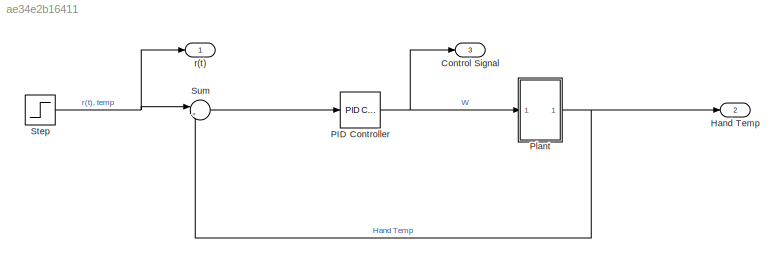
MODEL slx_ae34e2b16411
KIND model
CONFIG AbsTol = auto
CONFIG EnableMultiTasking = off
CONFIG FixedStep = auto
CONFIG MaxStep = auto
CONFIG MinStep = auto
CONFIG RelTol = 1e-3
CONFIG SampleTimeConstraint = Unconstrained
CONFIG Solver = VariableStepAuto
CONFIG SolverName = VariableStepAuto
CONFIG StartTime = 0.0
CONFIG StopTime = 10
BLOCK [Outport] Control Signal
  IconDisplay = Port number
  Port = 3
BLOCK [Outport] Hand Temp
  IconDisplay = Port number
  Port = 2
BLOCK [Reference] PID Controller  REF=simulink/Continuous/PID Controller
  Ports = [1, 1]
  SourceBlock = simulink/Continuous/PID Controller
  SourceProductBaseCode = SL
  SourceProductName = Simulink
  SourceType = PID 1dof
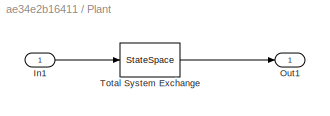
BLOCK [SubSystem] Plant
  Ports = [1, 1]
  RequestExecContextInheritance = off
BLOCK [Inport] Plant/In1
  IconDisplay = Port number
BLOCK [Outport] Plant/Out1
  IconDisplay = Port number
BLOCK [StateSpace] Plant/Total System Exchange
  A = [-0.4235,-0.0434; 1,0]
  B = [1;0]
  C = [3.1665, 0.7916]
  D = 0
  InitialCondition = 0
  Ports = [1, 1]
BLOCK [Step] Step
  After = 42
  SampleTime = 0
BLOCK [Sum] Sum
  IconShape = round
  InputSameDT = off
  Inputs = |+-
  OutDataTypeStr = Inherit: Inherit via internal rule
  Ports = [2, 1]
  SaturateOnIntegerOverflow = off
BLOCK [Outport] r(t)
  IconDisplay = Port number
NET PID Controller:1 -> Control Signal:1, Plant:1
LINE Plant/In1:1 -> Plant/Total System Exchange:1
LINE Plant/Total System Exchange:1 -> Plant/Out1:1
NET Plant:1 -> Hand Temp:1, Sum:2
NET Step:1 -> Sum:1, r(t):1
LINE Sum:1 -> PID Controller:1
note: NET lines group one-source signal fan-out (src -> all destinations, sorted); 1:1 wires keep LINE
